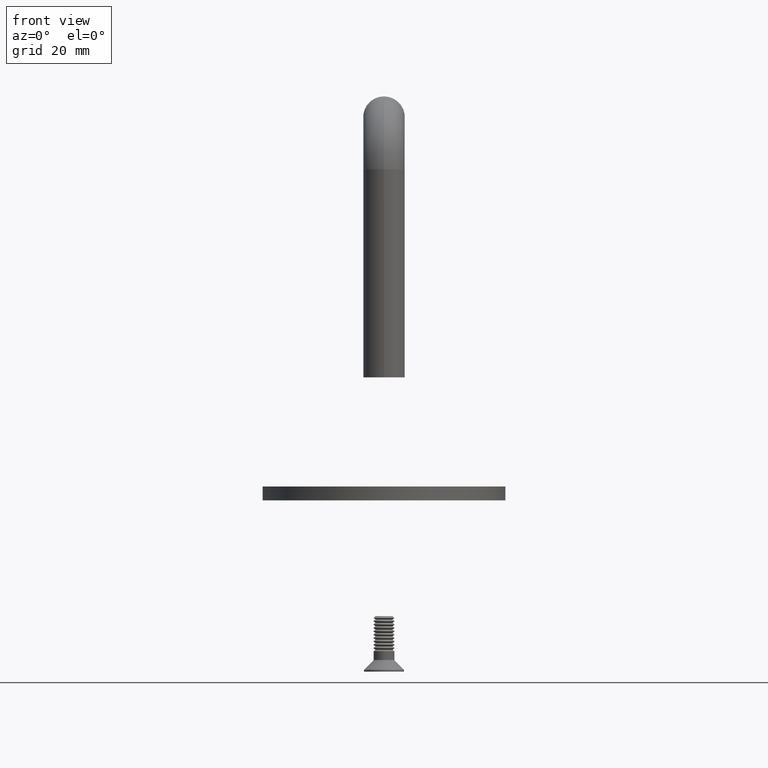
[diagram: clean part render]
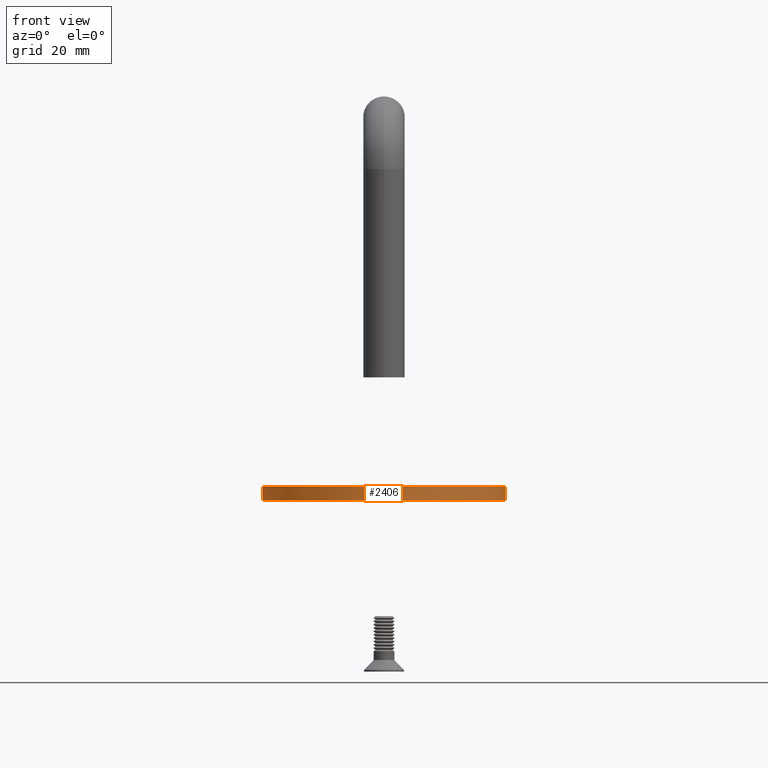
[diagram: same view with one face highlighted and labeled with its STEP entity id]
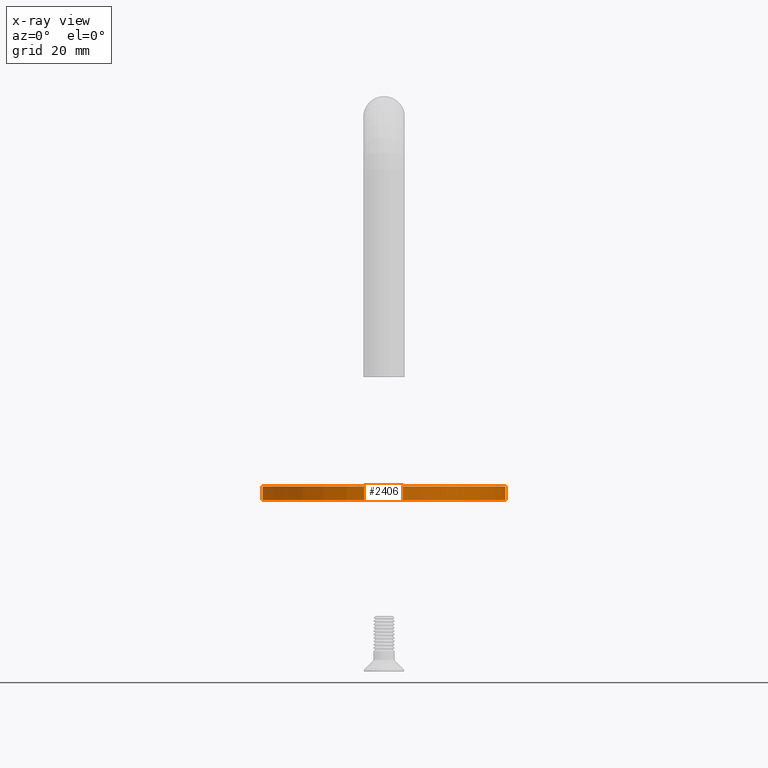
[diagram: x-ray of the same camera — body ghosted, the highlighted face saturated]
A machine part, front view. The second image highlights one B-rep face of the part: STEP entity #2406.
The next image is the same camera in x-ray: the body ghosted, the highlighted face saturated — about 0% of this face is hidden behind the body in this view.
In plain terms, the highlighted cylindrical surface (partial cylindrical patch) has radius 35 mm, axis along (-0, -0, -1).
Its self-contained STEP definition (entity closure, byte-faithful):
#197 = VERTEX_POINT ( 'NONE', #8814 ) ;
#414 = DIRECTION ( 'NONE',  ( 1.000000000000000000, 0.000000000000000000, 0.000000000000000000 ) ) ;
#748 = DIRECTION ( 'NONE',  ( -1.000000000000000000, 0.000000000000000000, 0.000000000000000000 ) ) ;
#1209 = EDGE_CURVE ( 'NONE', #11568, #197, #9993, .T. ) ;
#2104 = CARTESIAN_POINT ( 'NONE',  ( -35.00000000000000711, 0.000000000000000000, 0.000000000000000000 ) ) ;
#2297 = FACE_OUTER_BOUND ( 'NONE', #10122, .T. ) ;
#2406 = ADVANCED_FACE ( 'NONE', ( #2297 ), #2499, .T. ) ;
#2499 = CYLINDRICAL_SURFACE ( 'NONE', #4380, 35.00000000000000711 ) ;
#2786 = ORIENTED_EDGE ( 'NONE', *, *, #1209, .F. ) ;
#2799 = VECTOR ( 'NONE', #12493, 1000.000000000000000 ) ;
#3906 = VECTOR ( 'NONE', #17183, 1000.000000000000000 ) ;
#4380 = AXIS2_PLACEMENT_3D ( 'NONE', #11628, #10274, #748 ) ;
#5425 = CARTESIAN_POINT ( 'NONE',  ( -35.00000000000000711, 0.000000000000000000, 4.000000000000000000 ) ) ;
#5983 = DIRECTION ( 'NONE',  ( 0.000000000000000000, 0.000000000000000000, 1.000000000000000000 ) ) ;
#6937 = EDGE_CURVE ( 'NONE', #197, #11536, #14701, .T. ) ;
#7024 = ORIENTED_EDGE ( 'NONE', *, *, #12250, .T. ) ;
#7641 = CARTESIAN_POINT ( 'NONE',  ( 35.00000000000000711, 4.286263797015737285E-15, 4.000000000000000000 ) ) ;
#7880 = ORIENTED_EDGE ( 'NONE', *, *, #6937, .F. ) ;
#8181 = CARTESIAN_POINT ( 'NONE',  ( -35.00000000000000711, 0.000000000000000000, 4.000000000000000000 ) ) ;
#8814 = CARTESIAN_POINT ( 'NONE',  ( 35.00000000000000711, 4.286263797015737285E-15, 4.000000000000000000 ) ) ;
#8916 = CIRCLE ( 'NONE', #9452, 35.00000000000000711 ) ;
#9152 = LINE ( 'NONE', #8181, #2799 ) ;
#9452 = AXIS2_PLACEMENT_3D ( 'NONE', #9574, #13584, #16199 ) ;
#9574 = CARTESIAN_POINT ( 'NONE',  ( 0.000000000000000000, 0.000000000000000000, 0.000000000000000000 ) ) ;
#9993 = CIRCLE ( 'NONE', #11414, 35.00000000000000711 ) ;
#10122 = EDGE_LOOP ( 'NONE', ( #7880, #2786, #17331, #7024 ) ) ;
#10274 = DIRECTION ( 'NONE',  ( -0.000000000000000000, -0.000000000000000000, -1.000000000000000000 ) ) ;
#10503 = EDGE_CURVE ( 'NONE', #11568, #13129, #9152, .T. ) ;
#11222 = CARTESIAN_POINT ( 'NONE',  ( 0.000000000000000000, 0.000000000000000000, 4.000000000000000000 ) ) ;
#11414 = AXIS2_PLACEMENT_3D ( 'NONE', #11222, #5983, #414 ) ;
#11536 = VERTEX_POINT ( 'NONE', #13297 ) ;
#11568 = VERTEX_POINT ( 'NONE', #5425 ) ;
#11628 = CARTESIAN_POINT ( 'NONE',  ( 0.000000000000000000, 0.000000000000000000, 4.000000000000000000 ) ) ;
#12250 = EDGE_CURVE ( 'NONE', #13129, #11536, #8916, .T. ) ;
#12493 = DIRECTION ( 'NONE',  ( -0.000000000000000000, -0.000000000000000000, -1.000000000000000000 ) ) ;
#13129 = VERTEX_POINT ( 'NONE', #2104 ) ;
#13297 = CARTESIAN_POINT ( 'NONE',  ( 35.00000000000000711, 4.286263797015737285E-15, 0.000000000000000000 ) ) ;
#13584 = DIRECTION ( 'NONE',  ( 0.000000000000000000, 0.000000000000000000, 1.000000000000000000 ) ) ;
#14701 = LINE ( 'NONE', #7641, #3906 ) ;
#16199 = DIRECTION ( 'NONE',  ( 1.000000000000000000, 0.000000000000000000, 0.000000000000000000 ) ) ;
#17183 = DIRECTION ( 'NONE',  ( -0.000000000000000000, -0.000000000000000000, -1.000000000000000000 ) ) ;
#17331 = ORIENTED_EDGE ( 'NONE', *, *, #10503, .T. ) ;